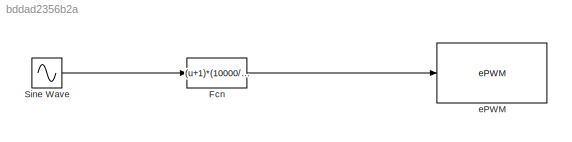
MODEL slx_bddad2356b2a
KIND model
CONFIG AbsTol = auto
CONFIG EnableMultiTasking = on
CONFIG FixedStep = 1e-5
CONFIG MaxStep = auto
CONFIG MinStep = auto
CONFIG RelTol = 1e-3
CONFIG SampleTimeConstraint = Unconstrained
CONFIG SolverName = FixedStepAuto
CONFIG StartTime = 0.0
CONFIG StopTime = Inf
BLOCK [Fcn] Fcn
  Expr = (u+1)*(10000/2)
BLOCK [Sin] Sine Wave
  Amplitude = 0.9
  Frequency = 100*pi
  SampleTime = 1/5000
BLOCK [Reference] ePWM  REF=c2802xlib/ePWM
  LibrarySourceBlock = c2837xDlib/ePWM
  SourceBlock = c2802xlib/ePWM
  SourceType = ePWM Type 1-4
  UserDataPersistent = on
LINE Fcn:1 -> ePWM:1
LINE Sine Wave:1 -> Fcn:1
